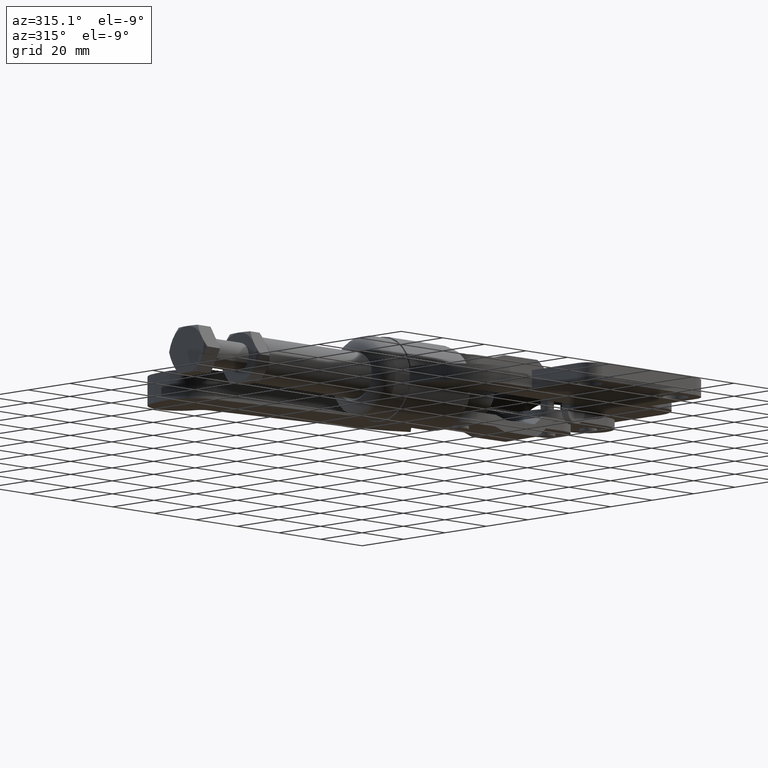
[diagram: clean part render]
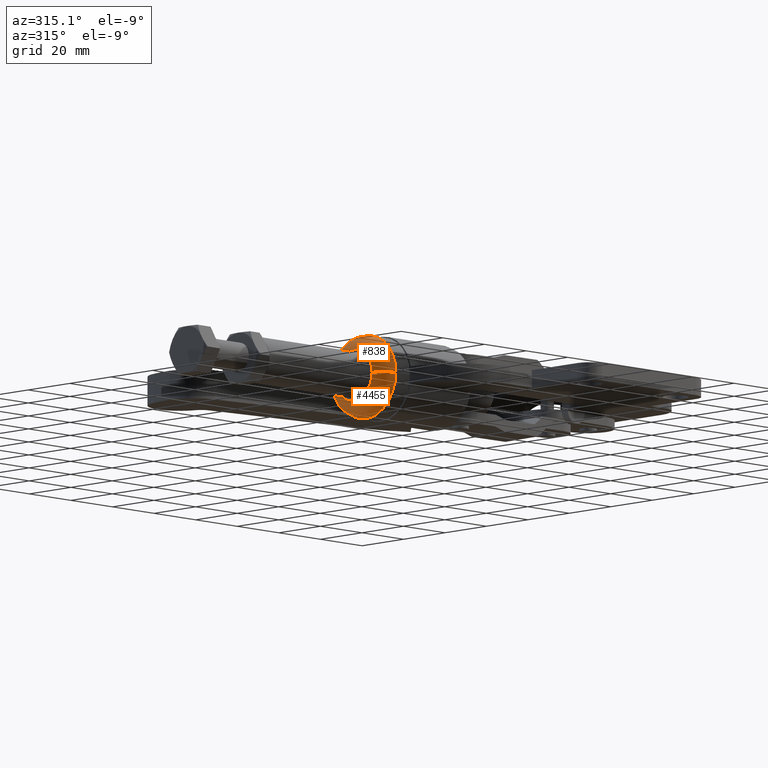
[diagram: same view with one multi-face feature highlighted, each face labeled with its STEP entity id]
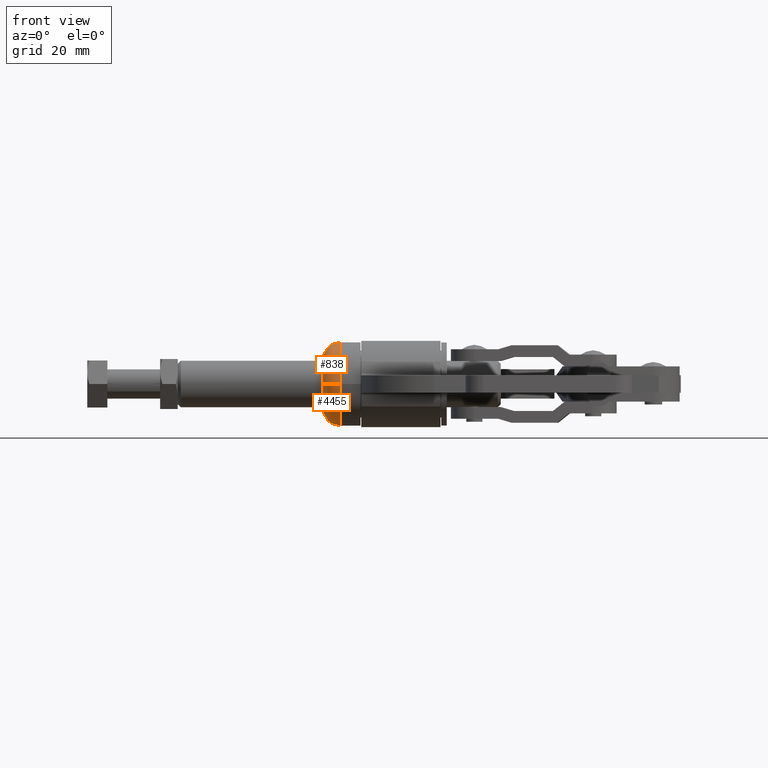
[diagram: same view with one multi-face feature highlighted, each face labeled with its STEP entity id]
A machine part, auxiliary view. The highlighted faces form ONE feature: a constant-radius fillet chain: 2 tangent blend faces with common blend radius 6 mm. The faces share edges in the B-rep.
A second angle (front view) of the same feature is appended — it is thin or edge-on in the first view.
Their STEP definitions:
[1] entity #4455 (Torus):
#151 = ORIENTED_EDGE ( 'NONE', *, *, #8140, .F. ) ;
#385 = AXIS2_PLACEMENT_3D ( 'NONE', #972, #4365, #3716 ) ;
#535 = CARTESIAN_POINT ( 'NONE',  ( -122.0455025418543600, 41.40000000000019000, -9.321194853152134300E-013 ) ) ;
#653 = CARTESIAN_POINT ( 'NONE',  ( -116.0674758126469200, 33.10000000000020700, -9.321194853152134300E-013 ) ) ;
#963 = ORIENTED_EDGE ( 'NONE', *, *, #5553, .F. ) ;
#972 = CARTESIAN_POINT ( 'NONE',  ( -116.0674758126469200, 41.40000000000018300, -9.321194853152134300E-013 ) ) ;
#988 = DIRECTION ( 'NONE',  ( 0.0000000000000000000, -1.000000000000000000, -1.224646799147308300E-016 ) ) ;
#1197 = DIRECTION ( 'NONE',  ( -1.574690311765622300E-015, -1.000000000000000000, 0.0000000000000000000 ) ) ;
#1368 = EDGE_CURVE ( 'NONE', #6183, #6867, #2382, .T. ) ;
#1376 = DIRECTION ( 'NONE',  ( -1.000000000000000000, 0.0000000000000000000, 0.0000000000000000000 ) ) ;
#1664 = DIRECTION ( 'NONE',  ( 0.0000000000000000000, -0.0000000000000000000, -1.000000000000000000 ) ) ;
#1705 = CARTESIAN_POINT ( 'NONE',  ( -116.0674758126469000, 49.70000000000016600, -9.311030284719210600E-013 ) ) ;
#2039 = EDGE_LOOP ( 'NONE', ( #963, #5441, #4069, #151 ) ) ;
#2157 = AXIS2_PLACEMENT_3D ( 'NONE', #1705, #5793, #988 ) ;
#2382 = CIRCLE ( 'NONE', #2510, 6.000000000000005300 ) ;
#2510 = AXIS2_PLACEMENT_3D ( 'NONE', #653, #1664, #1376 ) ;
#2789 = CARTESIAN_POINT ( 'NONE',  ( -116.0674758126469300, 27.10000000000020000, -9.321194853152134300E-013 ) ) ;
#2798 = FACE_OUTER_BOUND ( 'NONE', #2039, .T. ) ;
#3716 = DIRECTION ( 'NONE',  ( -9.704746718751376700E-016, -1.000000000000000000, 0.0000000000000000000 ) ) ;
#3925 = DIRECTION ( 'NONE',  ( -1.281662735122733100E-015, -1.000000000000000000, 0.0000000000000000000 ) ) ;
#4069 = ORIENTED_EDGE ( 'NONE', *, *, #1368, .T. ) ;
#4365 = DIRECTION ( 'NONE',  ( -1.000000000000000000, 1.281662735122733100E-015, -0.0000000000000000000 ) ) ;
#4455 = ADVANCED_FACE ( 'NONE', ( #2798 ), #4627, .T. ) ;
#4627 = TOROIDAL_SURFACE ( 'NONE', #5743, 8.299999999999982900, 6.000000000000003600 ) ;
#4851 = EDGE_CURVE ( 'NONE', #8682, #6183, #8635, .T. ) ;
#5152 = CARTESIAN_POINT ( 'NONE',  ( -122.0455025418543500, 50.21302672920765500, -9.310402008177408900E-013 ) ) ;
#5292 = DIRECTION ( 'NONE',  ( -1.000000000000000000, 1.281662735122733100E-015, -0.0000000000000000000 ) ) ;
#5441 = ORIENTED_EDGE ( 'NONE', *, *, #4851, .T. ) ;
#5553 = EDGE_CURVE ( 'NONE', #8682, #7962, #7166, .T. ) ;
#5743 = AXIS2_PLACEMENT_3D ( 'NONE', #8533, #7031, #3925 ) ;
#5793 = DIRECTION ( 'NONE',  ( -1.569584166154497000E-031, -1.224646799147353200E-016, 1.000000000000000000 ) ) ;
#6183 = VERTEX_POINT ( 'NONE', #2789 ) ;
#6577 = CARTESIAN_POINT ( 'NONE',  ( -116.0674758126469000, 55.70000000000017300, -9.303682403924327000E-013 ) ) ;
#6777 = CIRCLE ( 'NONE', #7412, 8.813026729207459600 ) ;
#6867 = VERTEX_POINT ( 'NONE', #7924 ) ;
#7031 = DIRECTION ( 'NONE',  ( -1.000000000000000000, 1.281662735122733100E-015, -0.0000000000000000000 ) ) ;
#7166 = CIRCLE ( 'NONE', #2157, 6.000000000000005300 ) ;
#7412 = AXIS2_PLACEMENT_3D ( 'NONE', #535, #5292, #1197 ) ;
#7924 = CARTESIAN_POINT ( 'NONE',  ( -122.0455025418543800, 32.58697327079273300, -9.321194853152134300E-013 ) ) ;
#7962 = VERTEX_POINT ( 'NONE', #5152 ) ;
#8140 = EDGE_CURVE ( 'NONE', #7962, #6867, #6777, .T. ) ;
#8533 = CARTESIAN_POINT ( 'NONE',  ( -116.0674758126469000, 41.40000000000018300, -9.321194853152134300E-013 ) ) ;
#8635 = CIRCLE ( 'NONE', #385, 14.29999999999998600 ) ;
#8682 = VERTEX_POINT ( 'NONE', #6577 ) ;
[2] entity #838 (Torus):
#653 = CARTESIAN_POINT ( 'NONE',  ( -116.0674758126469200, 33.10000000000020700, -9.321194853152134300E-013 ) ) ;
#838 = ADVANCED_FACE ( 'NONE', ( #3884 ), #2066, .T. ) ;
#988 = DIRECTION ( 'NONE',  ( 0.0000000000000000000, -1.000000000000000000, -1.224646799147308300E-016 ) ) ;
#1054 = ORIENTED_EDGE ( 'NONE', *, *, #1368, .F. ) ;
#1368 = EDGE_CURVE ( 'NONE', #6183, #6867, #2382, .T. ) ;
#1376 = DIRECTION ( 'NONE',  ( -1.000000000000000000, 0.0000000000000000000, 0.0000000000000000000 ) ) ;
#1528 = DIRECTION ( 'NONE',  ( -1.281662735122733100E-015, -1.000000000000000000, 0.0000000000000000000 ) ) ;
#1664 = DIRECTION ( 'NONE',  ( 0.0000000000000000000, -0.0000000000000000000, -1.000000000000000000 ) ) ;
#1705 = CARTESIAN_POINT ( 'NONE',  ( -116.0674758126469000, 49.70000000000016600, -9.311030284719210600E-013 ) ) ;
#2022 = DIRECTION ( 'NONE',  ( -1.574690311765622300E-015, -1.000000000000000000, 0.0000000000000000000 ) ) ;
#2066 = TOROIDAL_SURFACE ( 'NONE', #6207, 8.299999999999982900, 6.000000000000003600 ) ;
#2157 = AXIS2_PLACEMENT_3D ( 'NONE', #1705, #5793, #988 ) ;
#2382 = CIRCLE ( 'NONE', #2510, 6.000000000000005300 ) ;
#2510 = AXIS2_PLACEMENT_3D ( 'NONE', #653, #1664, #1376 ) ;
#2789 = CARTESIAN_POINT ( 'NONE',  ( -116.0674758126469300, 27.10000000000020000, -9.321194853152134300E-013 ) ) ;
#3046 = EDGE_CURVE ( 'NONE', #6867, #7962, #6443, .T. ) ;
#3064 = DIRECTION ( 'NONE',  ( -1.000000000000000000, 1.281662735122733100E-015, -0.0000000000000000000 ) ) ;
#3412 = ORIENTED_EDGE ( 'NONE', *, *, #3046, .F. ) ;
#3666 = DIRECTION ( 'NONE',  ( -1.000000000000000000, 1.281662735122733100E-015, -0.0000000000000000000 ) ) ;
#3884 = FACE_OUTER_BOUND ( 'NONE', #5742, .T. ) ;
#4136 = ORIENTED_EDGE ( 'NONE', *, *, #5553, .T. ) ;
#4569 = CIRCLE ( 'NONE', #7527, 14.29999999999998600 ) ;
#4910 = CARTESIAN_POINT ( 'NONE',  ( -116.0674758126469000, 41.40000000000018300, -9.321194853152134300E-013 ) ) ;
#5152 = CARTESIAN_POINT ( 'NONE',  ( -122.0455025418543500, 50.21302672920765500, -9.310402008177408900E-013 ) ) ;
#5553 = EDGE_CURVE ( 'NONE', #8682, #7962, #7166, .T. ) ;
#5728 = AXIS2_PLACEMENT_3D ( 'NONE', #6653, #3666, #2022 ) ;
#5742 = EDGE_LOOP ( 'NONE', ( #8611, #4136, #3412, #1054 ) ) ;
#5793 = DIRECTION ( 'NONE',  ( -1.569584166154497000E-031, -1.224646799147353200E-016, 1.000000000000000000 ) ) ;
#6183 = VERTEX_POINT ( 'NONE', #2789 ) ;
#6207 = AXIS2_PLACEMENT_3D ( 'NONE', #4910, #6214, #1528 ) ;
#6214 = DIRECTION ( 'NONE',  ( -1.000000000000000000, 1.281662735122733100E-015, -0.0000000000000000000 ) ) ;
#6443 = CIRCLE ( 'NONE', #5728, 8.813026729207459600 ) ;
#6577 = CARTESIAN_POINT ( 'NONE',  ( -116.0674758126469000, 55.70000000000017300, -9.303682403924327000E-013 ) ) ;
#6653 = CARTESIAN_POINT ( 'NONE',  ( -122.0455025418543600, 41.40000000000019000, -9.321194853152134300E-013 ) ) ;
#6867 = VERTEX_POINT ( 'NONE', #7924 ) ;
#7134 = CARTESIAN_POINT ( 'NONE',  ( -116.0674758126469200, 41.40000000000018300, -9.321194853152134300E-013 ) ) ;
#7166 = CIRCLE ( 'NONE', #2157, 6.000000000000005300 ) ;
#7527 = AXIS2_PLACEMENT_3D ( 'NONE', #7134, #3064, #7814 ) ;
#7814 = DIRECTION ( 'NONE',  ( -9.704746718751376700E-016, -1.000000000000000000, 0.0000000000000000000 ) ) ;
#7924 = CARTESIAN_POINT ( 'NONE',  ( -122.0455025418543800, 32.58697327079273300, -9.321194853152134300E-013 ) ) ;
#7962 = VERTEX_POINT ( 'NONE', #5152 ) ;
#8536 = EDGE_CURVE ( 'NONE', #6183, #8682, #4569, .T. ) ;
#8611 = ORIENTED_EDGE ( 'NONE', *, *, #8536, .T. ) ;
#8682 = VERTEX_POINT ( 'NONE', #6577 ) ;